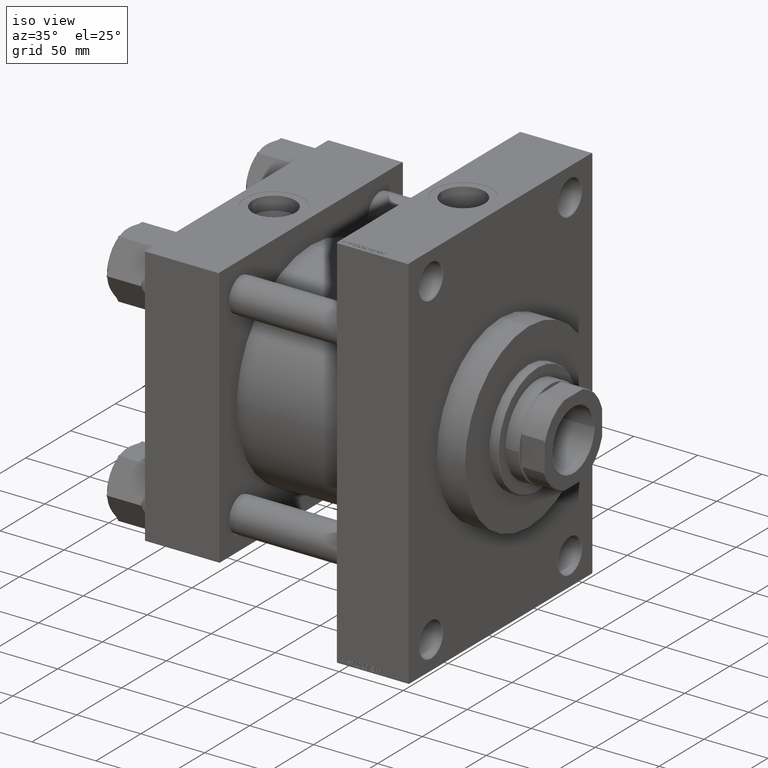
[diagram: clean part render]
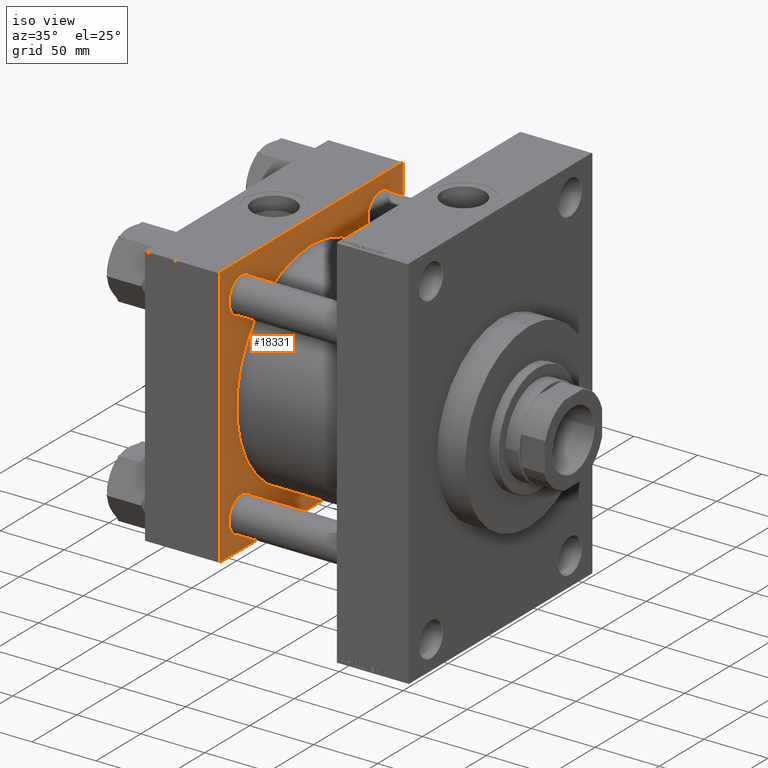
[diagram: same view with one face highlighted and labeled with its STEP entity id]
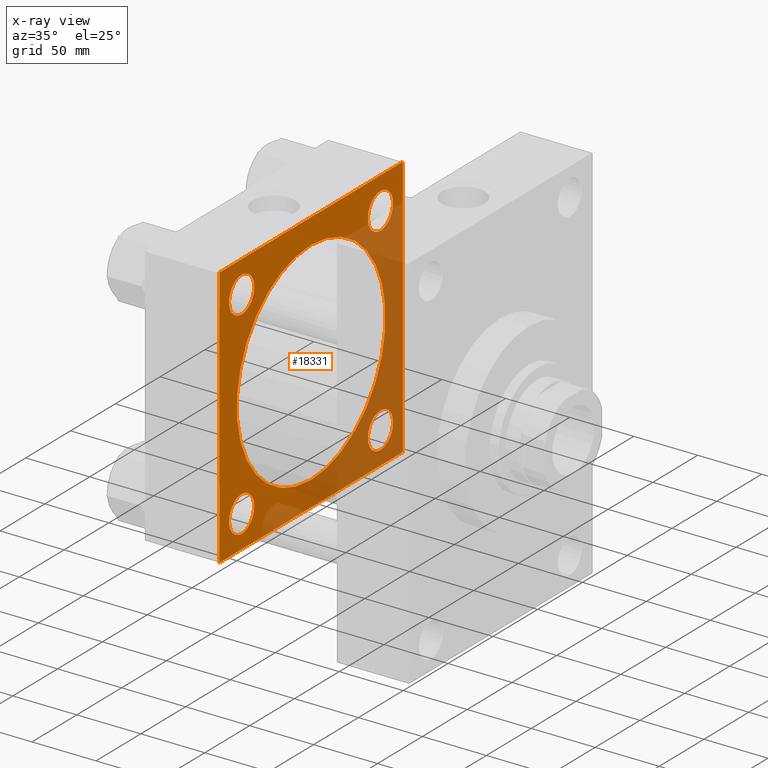
[diagram: x-ray of the same camera — body ghosted, the highlighted face saturated]
A machine part, iso view. The second image highlights one B-rep face of the part: STEP entity #18331.
The next image is the same camera in x-ray: the body ghosted, the highlighted face saturated — about 41% of this face is hidden behind the body in this view.
In plain terms, the highlighted planar face has unit normal (-1, 0, 0).
Its self-contained STEP definition (entity closure, byte-faithful):
#527 = CIRCLE ( 'NONE', #18262, 83.00000000000000000 ) ;
#1246 = DIRECTION ( 'NONE',  ( -1.000000000000000000, 0.000000000000000000, 0.000000000000000000 ) ) ;
#1507 = AXIS2_PLACEMENT_3D ( 'NONE', #33485, #4077, #3591 ) ;
#2113 = DIRECTION ( 'NONE',  ( 0.000000000000000000, 0.000000000000000000, 1.000000000000000000 ) ) ;
#2366 = VERTEX_POINT ( 'NONE', #26344 ) ;
#2719 = CARTESIAN_POINT ( 'NONE',  ( 58.00000000000000000, -77.44999999999996021, -77.45000000000003126 ) ) ;
#2788 = ORIENTED_EDGE ( 'NONE', *, *, #38921, .T. ) ;
#2792 = ORIENTED_EDGE ( 'NONE', *, *, #35453, .T. ) ;
#2918 = VECTOR ( 'NONE', #28566, 1000.000000000000114 ) ;
#3166 = FACE_BOUND ( 'NONE', #22996, .T. ) ;
#3303 = DIRECTION ( 'NONE',  ( 0.000000000000000000, 0.000000000000000000, 1.000000000000000000 ) ) ;
#3414 = EDGE_LOOP ( 'NONE', ( #24026, #3895 ) ) ;
#3591 = DIRECTION ( 'NONE',  ( 0.000000000000000000, 0.000000000000000000, 1.000000000000000000 ) ) ;
#3634 = LINE ( 'NONE', #7743, #18375 ) ;
#3771 = VERTEX_POINT ( 'NONE', #43317 ) ;
#3895 = ORIENTED_EDGE ( 'NONE', *, *, #21545, .T. ) ;
#4000 = VERTEX_POINT ( 'NONE', #5192 ) ;
#4010 = DIRECTION ( 'NONE',  ( 1.000000000000000000, -0.000000000000000000, -0.000000000000000000 ) ) ;
#4077 = DIRECTION ( 'NONE',  ( -1.000000000000000000, 0.000000000000000000, 0.000000000000000000 ) ) ;
#4388 = DIRECTION ( 'NONE',  ( 0.000000000000000000, 0.000000000000000000, 1.000000000000000000 ) ) ;
#4591 = CARTESIAN_POINT ( 'NONE',  ( 57.99999999999999289, -2.602085213965210642E-15, 83.00000000000000000 ) ) ;
#4611 = LINE ( 'NONE', #25811, #17462 ) ;
#4747 = DIRECTION ( 'NONE',  ( 0.000000000000000000, 0.000000000000000000, -1.000000000000000000 ) ) ;
#5192 = CARTESIAN_POINT ( 'NONE',  ( 58.00000000000000000, 77.44999999999998863, 63.45000000000017337 ) ) ;
#5740 = DIRECTION ( 'NONE',  ( -1.000000000000000000, 0.000000000000000000, 0.000000000000000000 ) ) ;
#5756 = CARTESIAN_POINT ( 'NONE',  ( 58.00000000000000000, 77.44999999999998863, 91.44999999999986073 ) ) ;
#6134 = CARTESIAN_POINT ( 'NONE',  ( 58.00000000000000000, -101.9999999999999432, -102.5000000000000000 ) ) ;
#6328 = CARTESIAN_POINT ( 'NONE',  ( 58.00000000000000000, 0.000000000000000000, 0.000000000000000000 ) ) ;
#6622 = CARTESIAN_POINT ( 'NONE',  ( 58.00000000000000000, -102.4999999999999716, 102.0000000000000000 ) ) ;
#6774 = VECTOR ( 'NONE', #4747, 1000.000000000000000 ) ;
#6931 = ORIENTED_EDGE ( 'NONE', *, *, #15492, .F. ) ;
#7052 = EDGE_CURVE ( 'NONE', #24851, #44293, #31332, .T. ) ;
#7124 = EDGE_CURVE ( 'NONE', #7987, #35227, #35256, .T. ) ;
#7451 = DIRECTION ( 'NONE',  ( 1.000000000000000000, -0.000000000000000000, -0.000000000000000000 ) ) ;
#7743 = CARTESIAN_POINT ( 'NONE',  ( 58.00000000000000000, 102.5000000000000284, -102.4999999999999716 ) ) ;
#7875 = VERTEX_POINT ( 'NONE', #26401 ) ;
#7987 = VERTEX_POINT ( 'NONE', #36022 ) ;
#8816 = EDGE_CURVE ( 'NONE', #3771, #12869, #24470, .T. ) ;
#9455 = CARTESIAN_POINT ( 'NONE',  ( 58.00000000000000000, -77.44999999999996021, -63.45000000000018758 ) ) ;
#9473 = DIRECTION ( 'NONE',  ( -0.000000000000000000, 0.7071067811865474617, 0.7071067811865474617 ) ) ;
#9947 = EDGE_CURVE ( 'NONE', #25412, #35227, #26672, .T. ) ;
#10411 = FACE_BOUND ( 'NONE', #37861, .T. ) ;
#10966 = CARTESIAN_POINT ( 'NONE',  ( 58.00000000000000000, -101.9999999999999432, -102.5000000000000000 ) ) ;
#11481 = ORIENTED_EDGE ( 'NONE', *, *, #16692, .F. ) ;
#11564 = CARTESIAN_POINT ( 'NONE',  ( 57.99999999999999289, -2.602085213965210642E-15, 0.000000000000000000 ) ) ;
#11722 = VERTEX_POINT ( 'NONE', #43816 ) ;
#11859 = LINE ( 'NONE', #22469, #36596 ) ;
#11984 = VECTOR ( 'NONE', #21136, 1000.000000000000114 ) ;
#12869 = VERTEX_POINT ( 'NONE', #6622 ) ;
#13343 = CARTESIAN_POINT ( 'NONE',  ( 58.00000000000000000, -102.4999999999999716, 102.5000000000000000 ) ) ;
#13403 = EDGE_LOOP ( 'NONE', ( #6931, #16966, #42635, #31753, #2792, #28705, #27579, #31676 ) ) ;
#14635 = AXIS2_PLACEMENT_3D ( 'NONE', #6328, #32102, #39806 ) ;
#15154 = AXIS2_PLACEMENT_3D ( 'NONE', #15962, #1246, #4388 ) ;
#15492 = EDGE_CURVE ( 'NONE', #7987, #17328, #3634, .T. ) ;
#15826 = DIRECTION ( 'NONE',  ( 0.000000000000000000, 0.000000000000000000, 1.000000000000000000 ) ) ;
#15962 = CARTESIAN_POINT ( 'NONE',  ( 58.00000000000000000, 77.44999999999998863, -77.45000000000001705 ) ) ;
#16154 = CIRCLE ( 'NONE', #39985, 83.00000000000000000 ) ;
#16410 = CARTESIAN_POINT ( 'NONE',  ( 58.00000000000000000, -77.44999999999996021, -91.44999999999987494 ) ) ;
#16586 = CARTESIAN_POINT ( 'NONE',  ( 58.00000000000000000, 77.44999999999998863, -63.45000000000017337 ) ) ;
#16644 = AXIS2_PLACEMENT_3D ( 'NONE', #29689, #33074, #22701 ) ;
#16645 = EDGE_CURVE ( 'NONE', #43731, #36180, #43828, .T. ) ;
#16692 = EDGE_CURVE ( 'NONE', #7875, #43738, #16154, .T. ) ;
#16966 = ORIENTED_EDGE ( 'NONE', *, *, #7124, .T. ) ;
#17030 = AXIS2_PLACEMENT_3D ( 'NONE', #2719, #31413, #28274 ) ;
#17328 = VERTEX_POINT ( 'NONE', #6134 ) ;
#17462 = VECTOR ( 'NONE', #22682, 1000.000000000000000 ) ;
#17738 = CARTESIAN_POINT ( 'NONE',  ( 58.00000000000000000, 102.5000000000000284, 102.0000000000000142 ) ) ;
#17883 = PLANE ( 'NONE',  #14635 ) ;
#17968 = LINE ( 'NONE', #10966, #11984 ) ;
#18262 = AXIS2_PLACEMENT_3D ( 'NONE', #44022, #4010, #3303 ) ;
#18331 = ADVANCED_FACE ( 'NONE', ( #3166, #39581, #43417, #10411, #36642, #43884 ), #17883, .F. ) ;
#18348 = DIRECTION ( 'NONE',  ( 0.000000000000000000, -1.000000000000000000, -1.353930517835556727E-16 ) ) ;
#18375 = VECTOR ( 'NONE', #18348, 1000.000000000000000 ) ;
#19057 = DIRECTION ( 'NONE',  ( -1.000000000000000000, 0.000000000000000000, 0.000000000000000000 ) ) ;
#19581 = LINE ( 'NONE', #13343, #25449 ) ;
#20206 = CARTESIAN_POINT ( 'NONE',  ( 58.00000000000000000, 77.44999999999998863, 77.45000000000001705 ) ) ;
#20460 = EDGE_CURVE ( 'NONE', #36180, #43731, #30873, .T. ) ;
#21136 = DIRECTION ( 'NONE',  ( 0.000000000000000000, 0.7071067811865474617, -0.7071067811865474617 ) ) ;
#21448 = DIRECTION ( 'NONE',  ( -1.000000000000000000, 0.000000000000000000, 0.000000000000000000 ) ) ;
#21545 = EDGE_CURVE ( 'NONE', #44293, #24851, #47084, .T. ) ;
#22469 = CARTESIAN_POINT ( 'NONE',  ( 58.00000000000000000, 102.0000000000000142, 102.5000000000000284 ) ) ;
#22583 = CARTESIAN_POINT ( 'NONE',  ( 58.00000000000000000, -77.44999999999996021, 77.45000000000003126 ) ) ;
#22682 = DIRECTION ( 'NONE',  ( 0.000000000000000000, -1.000000000000000000, -1.353930517835556973E-16 ) ) ;
#22701 = DIRECTION ( 'NONE',  ( 0.000000000000000000, 0.000000000000000000, 1.000000000000000000 ) ) ;
#22996 = EDGE_LOOP ( 'NONE', ( #30921, #38855 ) ) ;
#23367 = EDGE_CURVE ( 'NONE', #12869, #25246, #19581, .T. ) ;
#24026 = ORIENTED_EDGE ( 'NONE', *, *, #7052, .T. ) ;
#24470 = LINE ( 'NONE', #31938, #2918 ) ;
#24752 = AXIS2_PLACEMENT_3D ( 'NONE', #35920, #21448, #43376 ) ;
#24851 = VERTEX_POINT ( 'NONE', #43164 ) ;
#25246 = VERTEX_POINT ( 'NONE', #30280 ) ;
#25412 = VERTEX_POINT ( 'NONE', #17738 ) ;
#25449 = VECTOR ( 'NONE', #35266, 1000.000000000000000 ) ;
#25543 = DIRECTION ( 'NONE',  ( 0.000000000000000000, 0.000000000000000000, 1.000000000000000000 ) ) ;
#25811 = CARTESIAN_POINT ( 'NONE',  ( 58.00000000000000000, 102.5000000000000284, 102.5000000000000284 ) ) ;
#26041 = CARTESIAN_POINT ( 'NONE',  ( 58.00000000000000000, -77.44999999999996021, 77.45000000000003126 ) ) ;
#26344 = CARTESIAN_POINT ( 'NONE',  ( 58.00000000000000000, -77.44999999999996021, 91.44999999999987494 ) ) ;
#26401 = CARTESIAN_POINT ( 'NONE',  ( 57.99999999999999289, 7.562483218957820855E-15, -83.00000000000000000 ) ) ;
#26672 = LINE ( 'NONE', #37765, #6774 ) ;
#26702 = VECTOR ( 'NONE', #9473, 1000.000000000000114 ) ;
#26795 = DIRECTION ( 'NONE',  ( 0.000000000000000000, -0.7071067811865474617, 0.7071067811865474617 ) ) ;
#27077 = CARTESIAN_POINT ( 'NONE',  ( 58.00000000000000000, 102.5000000000000284, -101.9999999999999147 ) ) ;
#27579 = ORIENTED_EDGE ( 'NONE', *, *, #23367, .T. ) ;
#28274 = DIRECTION ( 'NONE',  ( 0.000000000000000000, 0.000000000000000000, 1.000000000000000000 ) ) ;
#28435 = EDGE_CURVE ( 'NONE', #2366, #41329, #41808, .T. ) ;
#28566 = DIRECTION ( 'NONE',  ( -0.000000000000000000, -0.7071067811865474617, -0.7071067811865474617 ) ) ;
#28705 = ORIENTED_EDGE ( 'NONE', *, *, #8816, .T. ) ;
#29689 = CARTESIAN_POINT ( 'NONE',  ( 58.00000000000000000, 77.44999999999998863, 77.45000000000001705 ) ) ;
#29932 = AXIS2_PLACEMENT_3D ( 'NONE', #20206, #5740, #2113 ) ;
#30238 = EDGE_LOOP ( 'NONE', ( #2788, #37278 ) ) ;
#30243 = AXIS2_PLACEMENT_3D ( 'NONE', #26041, #19057, #40747 ) ;
#30280 = CARTESIAN_POINT ( 'NONE',  ( 58.00000000000000000, -102.5000000000000000, -101.9999999999998863 ) ) ;
#30282 = ORIENTED_EDGE ( 'NONE', *, *, #33162, .T. ) ;
#30873 = CIRCLE ( 'NONE', #17030, 13.99999999999984546 ) ;
#30921 = ORIENTED_EDGE ( 'NONE', *, *, #16645, .T. ) ;
#31332 = CIRCLE ( 'NONE', #15154, 13.99999999999984546 ) ;
#31413 = DIRECTION ( 'NONE',  ( -1.000000000000000000, 0.000000000000000000, 0.000000000000000000 ) ) ;
#31676 = ORIENTED_EDGE ( 'NONE', *, *, #32896, .T. ) ;
#31753 = ORIENTED_EDGE ( 'NONE', *, *, #33166, .T. ) ;
#31938 = CARTESIAN_POINT ( 'NONE',  ( 58.00000000000000000, -102.4999999999999716, 102.0000000000000000 ) ) ;
#32102 = DIRECTION ( 'NONE',  ( -1.000000000000000000, 0.000000000000000000, 0.000000000000000000 ) ) ;
#32246 = CIRCLE ( 'NONE', #29932, 13.99999999999984546 ) ;
#32645 = ORIENTED_EDGE ( 'NONE', *, *, #35838, .F. ) ;
#32896 = EDGE_CURVE ( 'NONE', #25246, #17328, #17968, .T. ) ;
#32938 = ORIENTED_EDGE ( 'NONE', *, *, #44161, .T. ) ;
#33074 = DIRECTION ( 'NONE',  ( -1.000000000000000000, 0.000000000000000000, 0.000000000000000000 ) ) ;
#33162 = EDGE_CURVE ( 'NONE', #4000, #40248, #44303, .T. ) ;
#33166 = EDGE_CURVE ( 'NONE', #25412, #11722, #11859, .T. ) ;
#33485 = CARTESIAN_POINT ( 'NONE',  ( 58.00000000000000000, -77.44999999999996021, -77.45000000000003126 ) ) ;
#34488 = CIRCLE ( 'NONE', #38341, 13.99999999999984546 ) ;
#34529 = CARTESIAN_POINT ( 'NONE',  ( 58.00000000000000000, 102.5000000000000284, -101.9999999999999716 ) ) ;
#35227 = VERTEX_POINT ( 'NONE', #27077 ) ;
#35256 = LINE ( 'NONE', #34529, #26702 ) ;
#35266 = DIRECTION ( 'NONE',  ( 0.000000000000000000, -1.353930517835556973E-16, -1.000000000000000000 ) ) ;
#35453 = EDGE_CURVE ( 'NONE', #11722, #3771, #4611, .T. ) ;
#35838 = EDGE_CURVE ( 'NONE', #43738, #7875, #527, .T. ) ;
#35920 = CARTESIAN_POINT ( 'NONE',  ( 58.00000000000000000, 77.44999999999998863, -77.45000000000001705 ) ) ;
#36022 = CARTESIAN_POINT ( 'NONE',  ( 58.00000000000000000, 102.0000000000000142, -102.4999999999999716 ) ) ;
#36180 = VERTEX_POINT ( 'NONE', #9455 ) ;
#36596 = VECTOR ( 'NONE', #26795, 1000.000000000000114 ) ;
#36642 = FACE_BOUND ( 'NONE', #44087, .T. ) ;
#37278 = ORIENTED_EDGE ( 'NONE', *, *, #28435, .T. ) ;
#37765 = CARTESIAN_POINT ( 'NONE',  ( 58.00000000000000000, 102.5000000000000284, 102.5000000000000284 ) ) ;
#37861 = EDGE_LOOP ( 'NONE', ( #30282, #32938 ) ) ;
#38341 = AXIS2_PLACEMENT_3D ( 'NONE', #22583, #44751, #15826 ) ;
#38855 = ORIENTED_EDGE ( 'NONE', *, *, #20460, .T. ) ;
#38921 = EDGE_CURVE ( 'NONE', #41329, #2366, #34488, .T. ) ;
#39499 = CARTESIAN_POINT ( 'NONE',  ( 58.00000000000000000, -77.44999999999996021, 63.45000000000018758 ) ) ;
#39581 = FACE_BOUND ( 'NONE', #3414, .T. ) ;
#39806 = DIRECTION ( 'NONE',  ( 0.000000000000000000, 0.000000000000000000, 1.000000000000000000 ) ) ;
#39985 = AXIS2_PLACEMENT_3D ( 'NONE', #11564, #7451, #25543 ) ;
#40248 = VERTEX_POINT ( 'NONE', #5756 ) ;
#40747 = DIRECTION ( 'NONE',  ( 0.000000000000000000, 0.000000000000000000, 1.000000000000000000 ) ) ;
#41329 = VERTEX_POINT ( 'NONE', #39499 ) ;
#41808 = CIRCLE ( 'NONE', #30243, 13.99999999999984546 ) ;
#42635 = ORIENTED_EDGE ( 'NONE', *, *, #9947, .F. ) ;
#43164 = CARTESIAN_POINT ( 'NONE',  ( 58.00000000000000000, 77.44999999999998863, -91.44999999999986073 ) ) ;
#43317 = CARTESIAN_POINT ( 'NONE',  ( 58.00000000000000000, -101.9999999999999147, 102.5000000000000000 ) ) ;
#43376 = DIRECTION ( 'NONE',  ( 0.000000000000000000, 0.000000000000000000, 1.000000000000000000 ) ) ;
#43417 = FACE_BOUND ( 'NONE', #30238, .T. ) ;
#43731 = VERTEX_POINT ( 'NONE', #16410 ) ;
#43738 = VERTEX_POINT ( 'NONE', #4591 ) ;
#43816 = CARTESIAN_POINT ( 'NONE',  ( 58.00000000000000000, 102.0000000000000142, 102.5000000000000284 ) ) ;
#43828 = CIRCLE ( 'NONE', #1507, 13.99999999999984546 ) ;
#43884 = FACE_OUTER_BOUND ( 'NONE', #13403, .T. ) ;
#44022 = CARTESIAN_POINT ( 'NONE',  ( 57.99999999999999289, -2.602085213965210642E-15, 0.000000000000000000 ) ) ;
#44087 = EDGE_LOOP ( 'NONE', ( #32645, #11481 ) ) ;
#44161 = EDGE_CURVE ( 'NONE', #40248, #4000, #32246, .T. ) ;
#44293 = VERTEX_POINT ( 'NONE', #16586 ) ;
#44303 = CIRCLE ( 'NONE', #16644, 13.99999999999984546 ) ;
#44751 = DIRECTION ( 'NONE',  ( -1.000000000000000000, 0.000000000000000000, 0.000000000000000000 ) ) ;
#47084 = CIRCLE ( 'NONE', #24752, 13.99999999999984546 ) ;